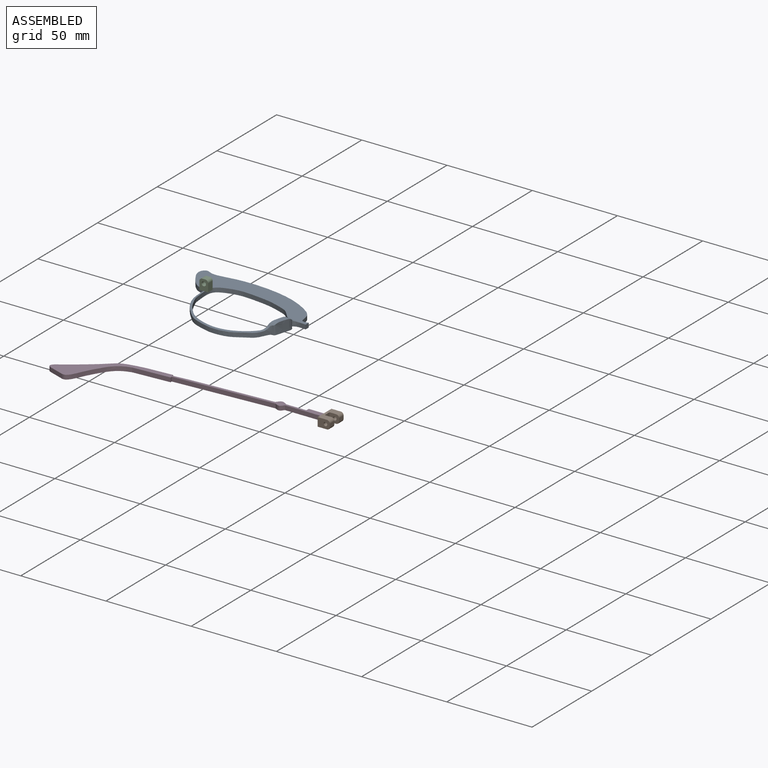
[diagram: assembled view]
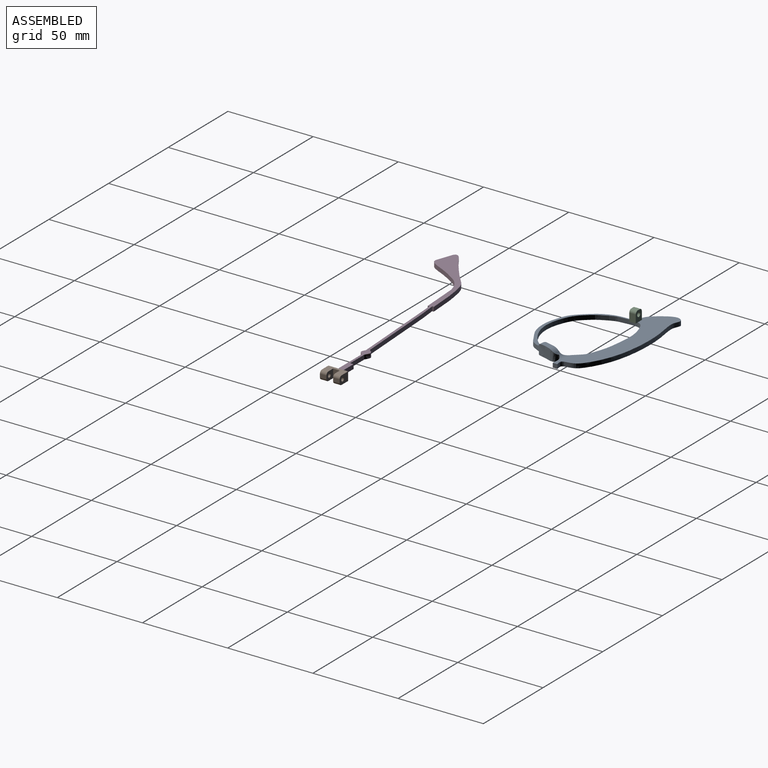
[diagram: assembled view, second angle]
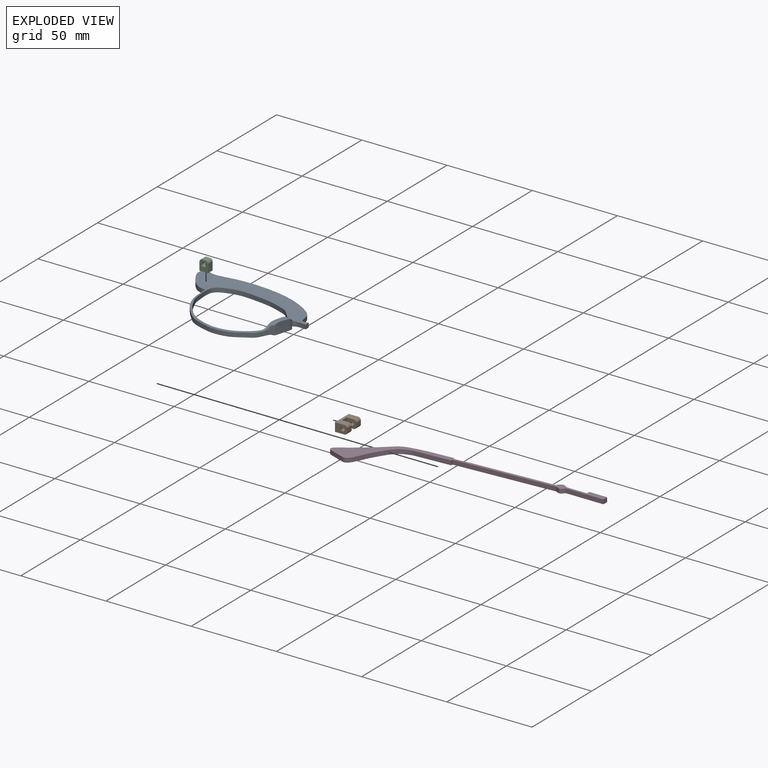
[diagram: exploded view]
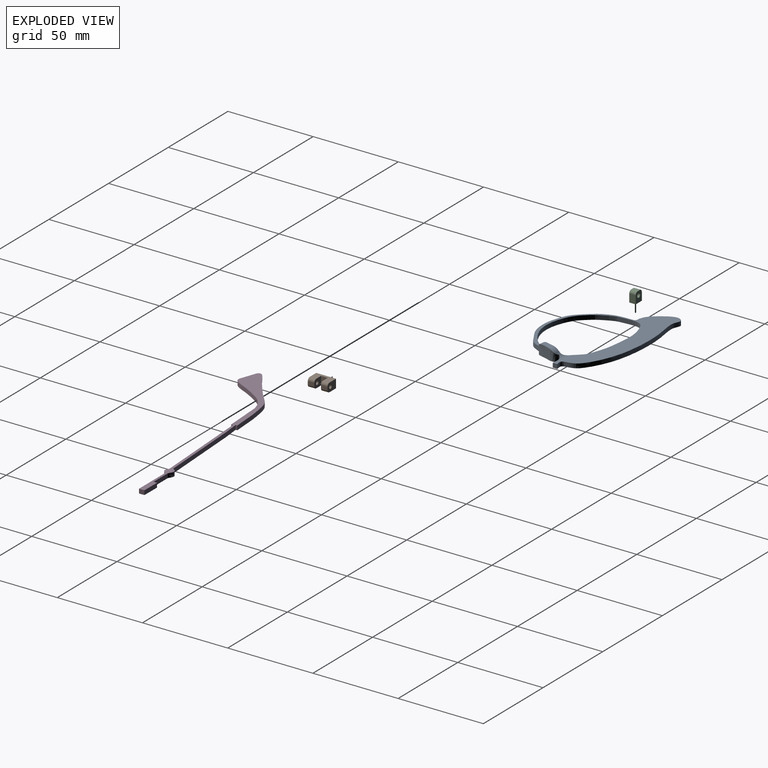
[diagram: exploded view, second angle]
ASSEMBLY  parts=4 mates=2
PART A: 14 faces, bbox 76.6x52.9x6.4 mm
  f0: extruded ~56.07x34.08mm, area 217.8mm2, adj f4,f5,f6,f7,f11,f13
  f1: extruded ~52.64x40.61mm, area 353.8mm2, adj f5,f6,f8,f10,f11,f12,f13
  f2: extruded ~7.44x5.36mm, area 35.6mm2, adj f3,f5,f6,f7,f10,f12
  f3: plane 2.69x2.54mm, normal (1,0,0), area 6.8mm2, adj f2,f4,f5,f6
  f4: extruded ~76.36x21.21mm, area 273.5mm2, adj f0,f3,f5,f6
  f5: plane 76.64x52.77mm, normal (0,0,1), area 914.4mm2, adj f0,f1,f2,f3,f4,f10,f11
  f6: plane 76.64x52.88mm, normal (0,0,-1), area 980mm2, adj f0,f1,f2,f3,f4,f7,f8
  f7: extruded ~10.18x6.35mm, area 66mm2, adj f0,f2,f6,f9,f12,f13
  f8: extruded ~10.38x6.35mm, area 66.6mm2, adj f1,f6,f9,f12,f13
  f9: plane 5.11x4.59mm, normal (0,0,1), area 15.1mm2, adj f7,f8,f12,f13
  f10: cylinder r=5.08mm len=13.05mm, axis (0.98,-0.21,0), area 18.9mm2, adj f1,f2,f5,f12
  f11: cylinder r=5.08mm len=4.45mm, axis (0.99,-0.16,0), area 8.2mm2, adj f0,f1,f5,f13
  f12: cylinder r=5.08mm len=4.65mm, axis (0.98,-0.21,0), area 15.2mm2, adj f1,f2,f7,f8,f9,f10
  f13: cylinder r=5.08mm len=4.77mm, axis (0.99,-0.16,0), area 13.9mm2, adj f0,f1,f7,f8,f9,f11
PART B: 17 faces, bbox 5.1x7.1x11.6 mm
  f0: plane 5.59x5.08mm, normal (0,0,-1), area 23.6mm2, adj f1,f2,f3,f4,f6,f7,f8
  f1: plane 11.56x5.46mm, normal (1,0,0), area 47.6mm2, adj f0,f2,f5,f8,f9,f11,f13,f16
  f2: cylinder r=1.65mm len=3.81mm, axis (0,0,-1), area 9.9mm2, adj f0,f1,f3,f5
  f3: plane 3.81x1.78mm, normal (0,1,0), area 6.8mm2, adj f0,f2,f4,f5
  f4: cylinder r=1.65mm len=3.81mm, axis (0,0,-1), area 9.9mm2, adj f0,f3,f5,f7
  f5: plane 7.11x5.08mm, normal (0,0,1), area 31.4mm2, adj f1,f2,f3,f4,f6,f7,f16
  f6: cylinder r=1.07mm len=3.81mm, axis (0,0,-1), area 25.5mm2, adj f0,f5
  f7: plane 11.56x5.46mm, normal (-1,0,0), area 47.6mm2, adj f0,f4,f5,f8,f9,f11,f12,f16
  f8: plane 5.08x3.94mm, normal (0,1,0), area 20mm2, adj f0,f1,f7,f9
  f9: plane 5.6x5.09mm, normal (0,0,1), area 23.3mm2, adj f1,f7,f8,f10,f12,f13,f14,f15
  f10: plane 3.81x1.78mm, normal (0,1,0), area 6.8mm2, adj f9,f11,f12,f13
  f11: plane 7.11x5.08mm, normal (0,0,-1), area 31.4mm2, adj f1,f7,f10,f12,f13,f14,f16
  f12: cylinder r=1.65mm len=3.81mm, axis (0,0,-1), area 9.9mm2, adj f7,f9,f10,f11
  f13: cylinder r=1.65mm len=3.81mm, axis (0,0,-1), area 9.9mm2, adj f1,f9,f10,f11
  f14: cylinder r=1.07mm len=3.81mm, axis (0,0,-1), area 25.5mm2, adj f9,f11,f15
  f15: plane 1.83x0.39mm, normal (0,-0.02,1), area 0.3mm2, adj f9,f14
  f16: plane 11.56x5.08mm, normal (0,-1,0), area 58.7mm2, adj f1,f5,f7,f11
PART C: 9 faces, bbox 5.1x6.4x3.8 mm
  f0: plane 3.81x1.78mm, normal (0,1,0), area 6.8mm2, adj f5,f6,f7,f8
  f1: plane 4.7x3.81mm, normal (-1,0,0), area 17.9mm2, adj f2,f5,f6,f7
  f2: plane 5.08x3.81mm, normal (0,-1,0), area 19.4mm2, adj f1,f4,f5,f6
  f3: cylinder r=1.27mm len=3.81mm, axis (0,0,-1), area 30.4mm2, adj f5,f6
  f4: plane 4.7x3.81mm, normal (1,0,0), area 17.9mm2, adj f2,f5,f6,f8
  f5: plane 6.35x5.08mm, normal (0,0,1), area 26mm2, adj f0,f1,f2,f3,f4,f7,f8
  f6: plane 6.35x5.08mm, normal (0,0,-1), area 26mm2, adj f0,f1,f2,f3,f4,f7,f8
  f7: cylinder r=1.65mm len=3.81mm, axis (0,0,-1), area 9.9mm2, adj f0,f1,f5,f6
  f8: cylinder r=1.65mm len=3.81mm, axis (0,0,-1), area 9.9mm2, adj f0,f4,f5,f6
PART D: 17 faces, bbox 140.9x35.8x2.5 mm
  f0: plane 3.17x2.54mm, normal (1,0,0), area 8.1mm2, adj f1,f14,f15,f16
  f1: plane 10.47x2.54mm, normal (0.01,1,0), area 26.6mm2, adj f0,f2,f15,f16
  f2: plane 2.54x1.95mm, normal (-1,0,0), area 5mm2, adj f1,f3,f15,f16
  f3: plane 11.72x2.54mm, normal (0,1,0), area 29.8mm2, adj f2,f4,f15,f16
  f4: extruded ~5.96x2.54mm, area 18.6mm2, adj f3,f5,f15,f16
  f5: plane 48.54x2.93mm, normal (-0.06,1,0), area 123.5mm2, adj f4,f6,f15,f16
  f6: plane 9.28x2.54mm, normal (-0.1,0.99,0), area 23.7mm2, adj f5,f7,f15,f16
  f7: plane 2.54x0.95mm, normal (1,0,0), area 2.4mm2, adj f6,f8,f15,f16
  f8: plane 14.28x2.54mm, normal (-0.07,1,0), area 36.3mm2, adj f7,f9,f15,f16
  f9: extruded ~40.53x28.84mm, area 243.6mm2, adj f8,f10,f15,f16
  f10: plane 21.58x2.54mm, normal (0.06,-1,0), area 54.9mm2, adj f9,f11,f15,f16
  f11: plane 2.54x1mm, normal (1,0.06,0), area 2.6mm2, adj f10,f12,f15,f16
  f12: plane 58.45x3.57mm, normal (0.06,-1,0), area 148.7mm2, adj f11,f13,f15,f16
  f13: extruded ~4.75x2.54mm, area 14.9mm2, adj f12,f14,f15,f16
  f14: plane 22.13x2.54mm, normal (0,-1,0), area 56.2mm2, adj f0,f13,f15,f16
  f15: plane 140.92x35.75mm, normal (0,0,1), area 469.4mm2, adj f0,f1,f2,f3,f4,f5,f6,f7
  f16: plane 140.92x35.75mm, normal (0,0,-1), area 469.4mm2, adj f0,f1,f2,f3,f4,f5,f6,f7
PLACE A t=(6.76,-1.07,2.89)mm
PLACE B rot(axis=(0.58,0.58,-0.58),120deg) t=(42.53,-26.89,-27.81)mm
PLACE C rot(axis=(1,0,0),90deg) t=(-12.52,57.48,-26.2)mm
PLACE D t=(6.76,-1.07,2.89)mm
MATE fastened B.f16 <-> D.f0  axis (-1,0,0) through (73.39,-28.8,4.16)mm
MATE fastened C.f2 <-> A.f5  axis (0,0,-1) through (-57.77,55.57,5.43)mm
